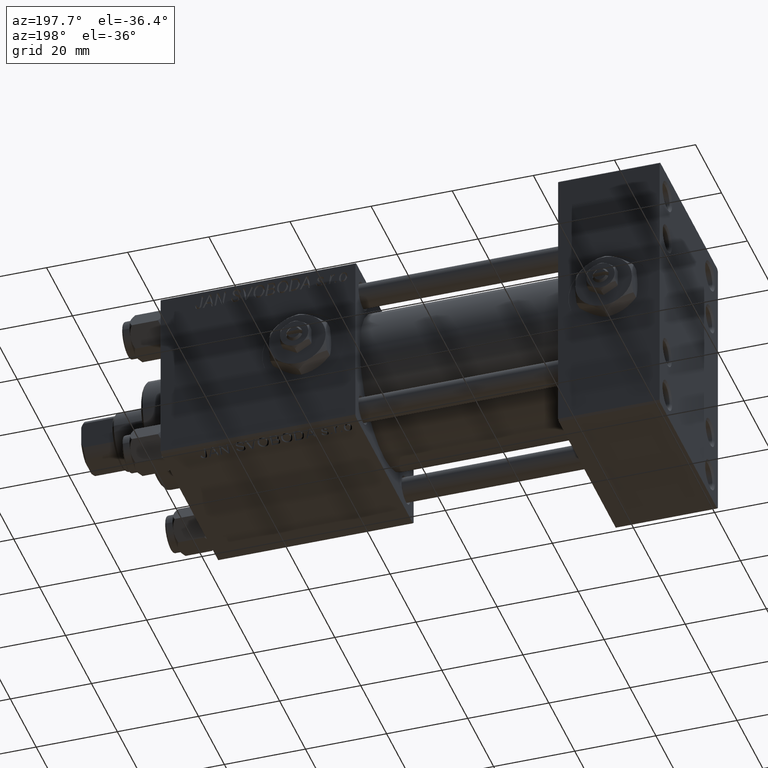
[diagram: clean part render]
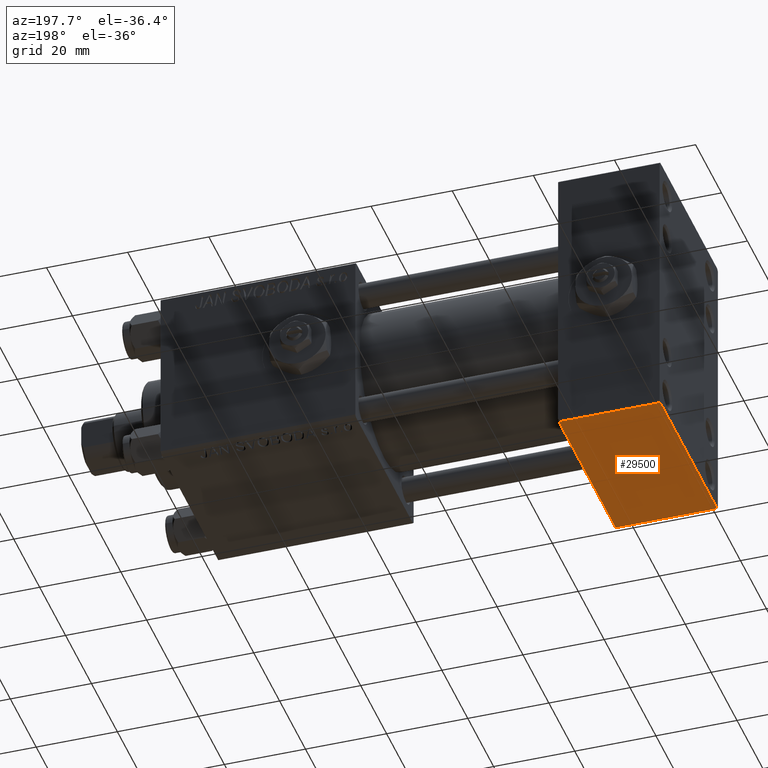
[diagram: same view with one face highlighted and labeled with its STEP entity id]
A machine part, auxiliary view. The second image highlights one B-rep face of the part: STEP entity #29500.
In plain terms, the highlighted planar face has unit normal (0, 0, -1).
Its self-contained STEP definition (entity closure, byte-faithful):
#481 = ORIENTED_EDGE ( 'NONE', *, *, #43070, .T. ) ;
#5590 = EDGE_CURVE ( 'NONE', #28598, #34944, #33562, .T. ) ;
#7164 = VERTEX_POINT ( 'NONE', #36975 ) ;
#8252 = CARTESIAN_POINT ( 'NONE',  ( 25.00000000000000000, 22.50000000000000355, -34.99999999999999289 ) ) ;
#10438 = DIRECTION ( 'NONE',  ( 0.000000000000000000, -1.000000000000000000, -1.541976423090495387E-16 ) ) ;
#11270 = LINE ( 'NONE', #27298, #40154 ) ;
#12101 = AXIS2_PLACEMENT_3D ( 'NONE', #35094, #16157, #36110 ) ;
#12846 = VERTEX_POINT ( 'NONE', #30655 ) ;
#13237 = DIRECTION ( 'NONE',  ( 0.000000000000000000, -1.000000000000000000, -1.541976423090495387E-16 ) ) ;
#16157 = DIRECTION ( 'NONE',  ( 0.000000000000000000, 1.541976423090495387E-16, -1.000000000000000000 ) ) ;
#16787 = LINE ( 'NONE', #51790, #43497 ) ;
#22002 = CARTESIAN_POINT ( 'NONE',  ( 0.000000000000000000, 22.50000000000000355, -34.99999999999999289 ) ) ;
#24530 = VECTOR ( 'NONE', #10438, 1000.000000000000000 ) ;
#27298 = CARTESIAN_POINT ( 'NONE',  ( 25.00000000000000000, 21.99999999999999645, -34.99999999999999289 ) ) ;
#28143 = VECTOR ( 'NONE', #13237, 1000.000000000000000 ) ;
#28598 = VERTEX_POINT ( 'NONE', #37584 ) ;
#29500 = ADVANCED_FACE ( 'NONE', ( #43496 ), #40067, .T. ) ;
#30655 = CARTESIAN_POINT ( 'NONE',  ( 25.00000000000000000, 21.99999999999999645, -34.99999999999999289 ) ) ;
#31507 = ORIENTED_EDGE ( 'NONE', *, *, #31787, .T. ) ;
#31787 = EDGE_CURVE ( 'NONE', #12846, #7164, #44512, .T. ) ;
#33562 = LINE ( 'NONE', #22002, #24530 ) ;
#34944 = VERTEX_POINT ( 'NONE', #42279 ) ;
#35094 = CARTESIAN_POINT ( 'NONE',  ( 25.00000000000000000, 22.50000000000000355, -34.99999999999999289 ) ) ;
#35536 = ORIENTED_EDGE ( 'NONE', *, *, #5590, .F. ) ;
#36110 = DIRECTION ( 'NONE',  ( 0.000000000000000000, 1.000000000000000000, 1.541976423090495387E-16 ) ) ;
#36975 = CARTESIAN_POINT ( 'NONE',  ( 25.00000000000000000, -21.99999999999998934, -35.00000000000000000 ) ) ;
#37584 = CARTESIAN_POINT ( 'NONE',  ( 0.000000000000000000, 21.99999999999999645, -34.99999999999999289 ) ) ;
#39102 = EDGE_LOOP ( 'NONE', ( #35536, #481, #31507, #41037 ) ) ;
#40067 = PLANE ( 'NONE',  #12101 ) ;
#40154 = VECTOR ( 'NONE', #43340, 1000.000000000000000 ) ;
#41037 = ORIENTED_EDGE ( 'NONE', *, *, #41389, .T. ) ;
#41389 = EDGE_CURVE ( 'NONE', #7164, #34944, #16787, .T. ) ;
#42279 = CARTESIAN_POINT ( 'NONE',  ( 0.000000000000000000, -21.99999999999998934, -35.00000000000000000 ) ) ;
#43070 = EDGE_CURVE ( 'NONE', #28598, #12846, #11270, .T. ) ;
#43340 = DIRECTION ( 'NONE',  ( 1.000000000000000000, 0.000000000000000000, 0.000000000000000000 ) ) ;
#43496 = FACE_OUTER_BOUND ( 'NONE', #39102, .T. ) ;
#43497 = VECTOR ( 'NONE', #44901, 1000.000000000000000 ) ;
#44512 = LINE ( 'NONE', #8252, #28143 ) ;
#44901 = DIRECTION ( 'NONE',  ( -1.000000000000000000, 0.000000000000000000, 0.000000000000000000 ) ) ;
#51790 = CARTESIAN_POINT ( 'NONE',  ( 0.000000000000000000, -22.00000000000000355, -35.00000000000000000 ) ) ;